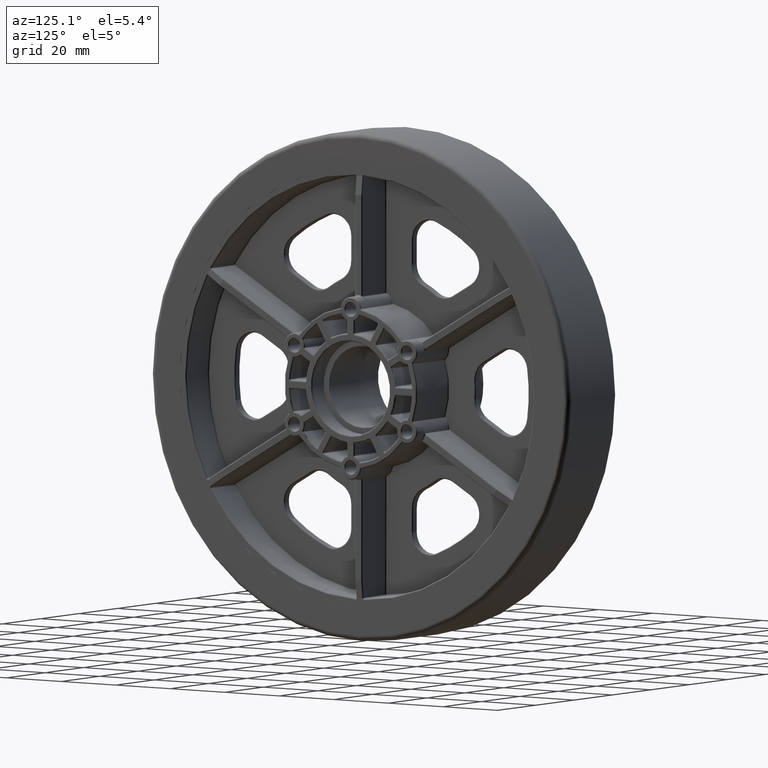
[diagram: clean part render]
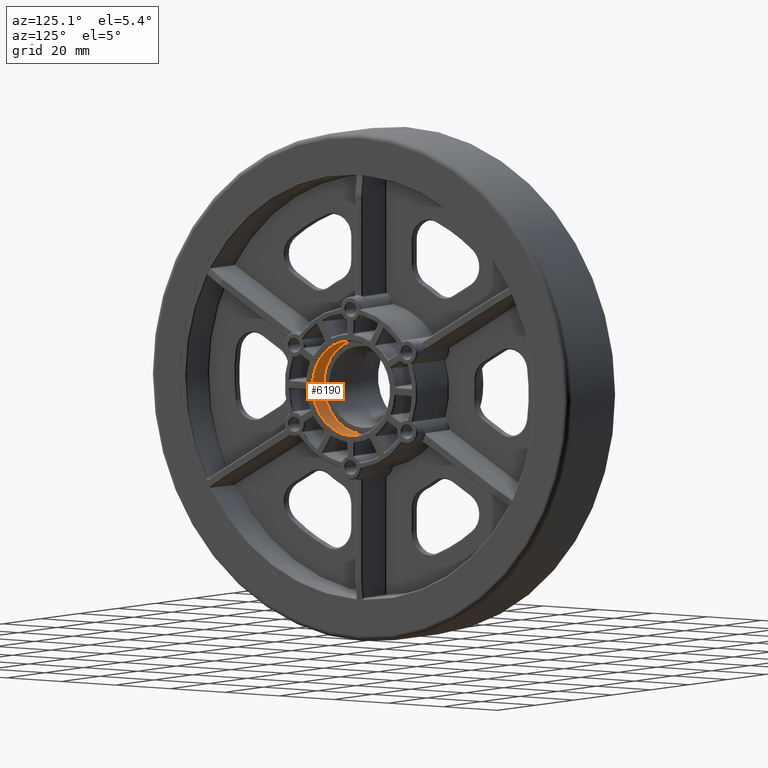
[diagram: same view with one face highlighted and labeled with its STEP entity id]
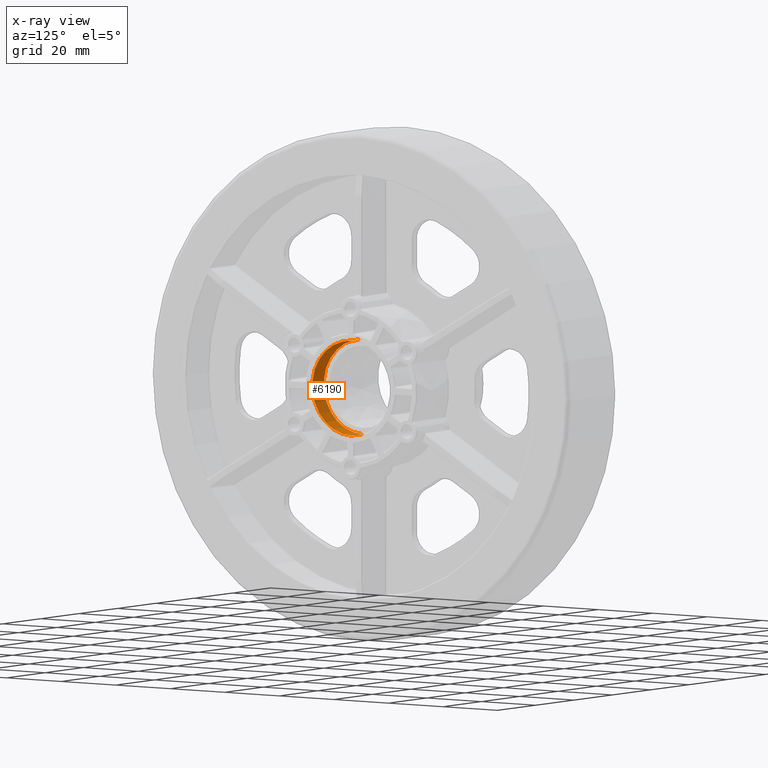
[diagram: x-ray of the same camera — body ghosted, the highlighted face saturated]
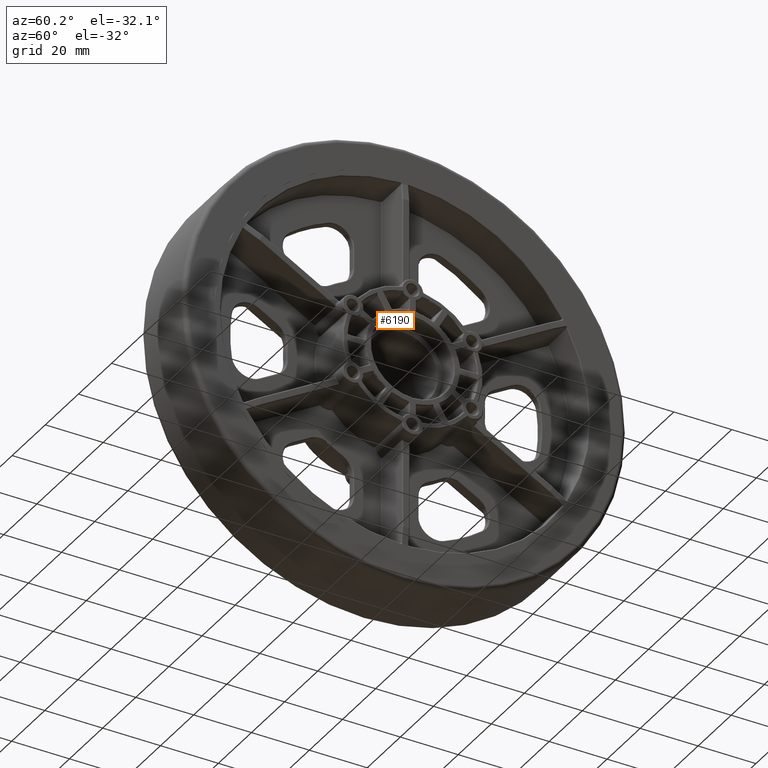
[diagram: same view with one face highlighted and labeled with its STEP entity id]
A machine part, auxiliary view. The second image highlights one B-rep face of the part: STEP entity #6190.
The next image is the same camera in x-ray: the body ghosted, the highlighted face saturated — about 0% of this face is hidden behind the body in this view.
A second angle (auxiliary view) of the same face is appended — the face is thin or edge-on in the first view.
In plain terms, the highlighted cylindrical surface (partial cylindrical patch) has radius 14.2875 mm, axis along (1, 0, 0).
Its self-contained STEP definition (entity closure, byte-faithful):
#534 = DIRECTION ( 'NONE',  ( 1.000000000000000000, -0.0000000000000000000, -0.0000000000000000000 ) ) ;
#1413 = AXIS2_PLACEMENT_3D ( 'NONE', #47477, #43407, #51514 ) ;
#3791 = EDGE_CURVE ( 'NONE', #14160, #14511, #17985, .T. ) ;
#4607 = VECTOR ( 'NONE', #11388, 39.37007874015748143 ) ;
#4614 = CARTESIAN_POINT ( 'NONE',  ( 0.4374999999999998890, 6.888638245203861944E-17, 0.5625000000000001110 ) ) ;
#5035 = VERTEX_POINT ( 'NONE', #12980 ) ;
#5304 = ORIENTED_EDGE ( 'NONE', *, *, #48501, .F. ) ;
#5898 = EDGE_CURVE ( 'NONE', #14160, #5035, #36847, .T. ) ;
#6054 = CARTESIAN_POINT ( 'NONE',  ( 0.6724999999999999867, 0.0000000000000000000, -0.5625000000000001110 ) ) ;
#6190 = ADVANCED_FACE ( 'NONE', ( #18433 ), #27950, .F. ) ;
#8717 = DIRECTION ( 'NONE',  ( 1.000000000000000000, -0.0000000000000000000, 0.0000000000000000000 ) ) ;
#11388 = DIRECTION ( 'NONE',  ( 1.000000000000000000, -0.0000000000000000000, -0.0000000000000000000 ) ) ;
#11927 = DIRECTION ( 'NONE',  ( 1.000000000000000000, 0.0000000000000000000, 0.0000000000000000000 ) ) ;
#12980 = CARTESIAN_POINT ( 'NONE',  ( 0.6724999999999999867, 6.888638245203861944E-17, 0.5625000000000001110 ) ) ;
#14160 = VERTEX_POINT ( 'NONE', #45396 ) ;
#14511 = VERTEX_POINT ( 'NONE', #31907 ) ;
#15286 = VECTOR ( 'NONE', #534, 39.37007874015748143 ) ;
#15430 = LINE ( 'NONE', #35744, #4607 ) ;
#15910 = ORIENTED_EDGE ( 'NONE', *, *, #5898, .T. ) ;
#16711 = AXIS2_PLACEMENT_3D ( 'NONE', #36265, #11927, #40312 ) ;
#17985 = CIRCLE ( 'NONE', #16711, 0.5625000000000001110 ) ;
#18433 = FACE_OUTER_BOUND ( 'NONE', #48183, .T. ) ;
#22263 = ORIENTED_EDGE ( 'NONE', *, *, #3791, .F. ) ;
#23933 = CIRCLE ( 'NONE', #37765, 0.5625000000000001110 ) ;
#27950 = CYLINDRICAL_SURFACE ( 'NONE', #1413, 0.5625000000000001110 ) ;
#31907 = CARTESIAN_POINT ( 'NONE',  ( 0.4374999999999998890, 0.0000000000000000000, -0.5625000000000001110 ) ) ;
#33062 = CARTESIAN_POINT ( 'NONE',  ( 0.6724999999999999867, 0.0000000000000000000, 0.0000000000000000000 ) ) ;
#35744 = CARTESIAN_POINT ( 'NONE',  ( 0.4374999999999998890, 0.0000000000000000000, -0.5625000000000001110 ) ) ;
#36265 = CARTESIAN_POINT ( 'NONE',  ( 0.4374999999999998890, 0.0000000000000000000, 0.0000000000000000000 ) ) ;
#36847 = LINE ( 'NONE', #4614, #15286 ) ;
#37140 = DIRECTION ( 'NONE',  ( 0.0000000000000000000, 0.0000000000000000000, -1.000000000000000000 ) ) ;
#37765 = AXIS2_PLACEMENT_3D ( 'NONE', #33062, #8717, #37140 ) ;
#38915 = ORIENTED_EDGE ( 'NONE', *, *, #44025, .T. ) ;
#40312 = DIRECTION ( 'NONE',  ( 0.0000000000000000000, 0.0000000000000000000, -1.000000000000000000 ) ) ;
#40606 = VERTEX_POINT ( 'NONE', #6054 ) ;
#43407 = DIRECTION ( 'NONE',  ( 1.000000000000000000, -0.0000000000000000000, -0.0000000000000000000 ) ) ;
#44025 = EDGE_CURVE ( 'NONE', #5035, #40606, #23933, .T. ) ;
#45396 = CARTESIAN_POINT ( 'NONE',  ( 0.4374999999999998890, 6.888638245203861944E-17, 0.5625000000000001110 ) ) ;
#47477 = CARTESIAN_POINT ( 'NONE',  ( 0.4374999999999998890, 0.0000000000000000000, 0.0000000000000000000 ) ) ;
#48183 = EDGE_LOOP ( 'NONE', ( #22263, #15910, #38915, #5304 ) ) ;
#48501 = EDGE_CURVE ( 'NONE', #14511, #40606, #15430, .T. ) ;
#51514 = DIRECTION ( 'NONE',  ( 0.0000000000000000000, 0.0000000000000000000, -1.000000000000000000 ) ) ;